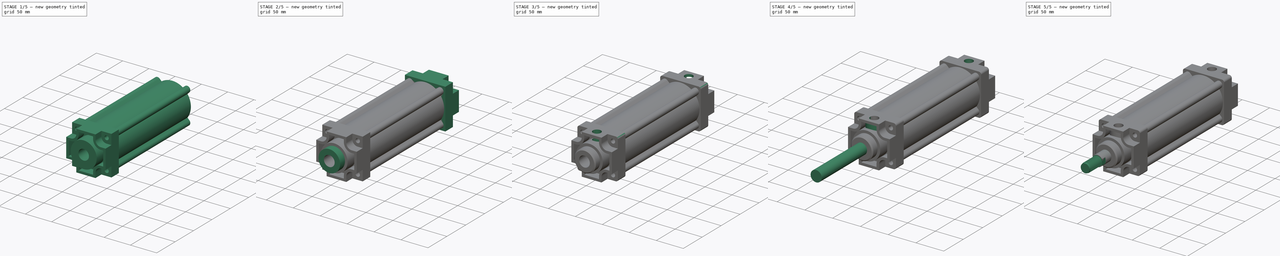
[diagram: build sequence overview — one tinted view per stage of 5, left to right]
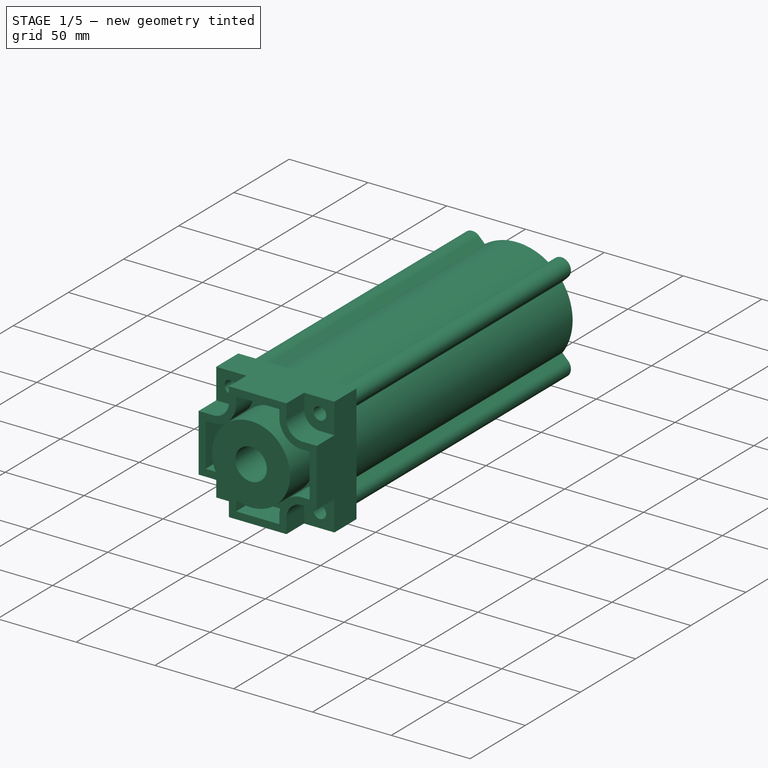
[diagram: stage 1 of 5 — iso view after this stage's code; geometry added in this stage tinted green]
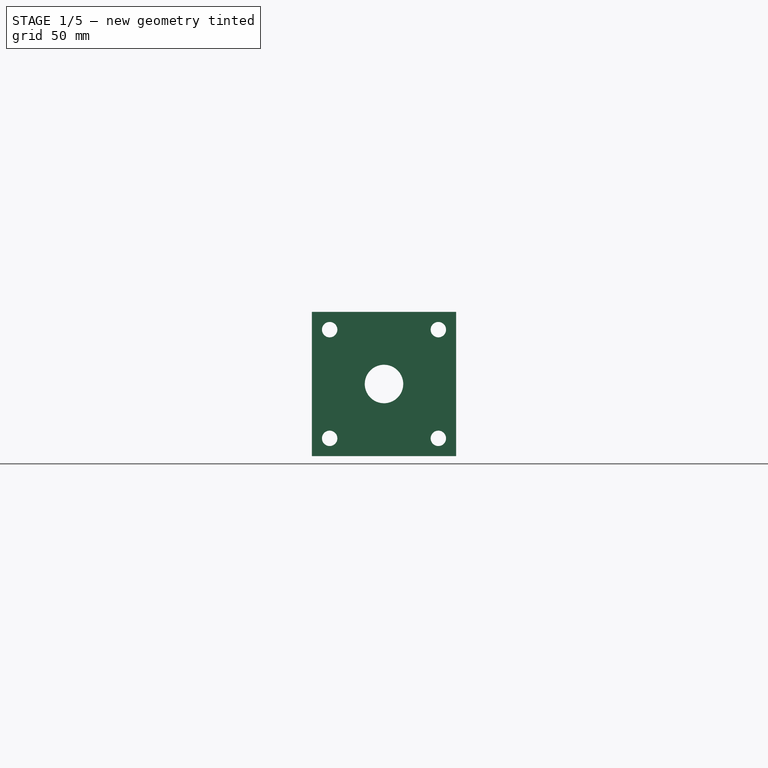
[diagram: stage 1 of 5 — front view after this stage's code; geometry added in this stage tinted green]
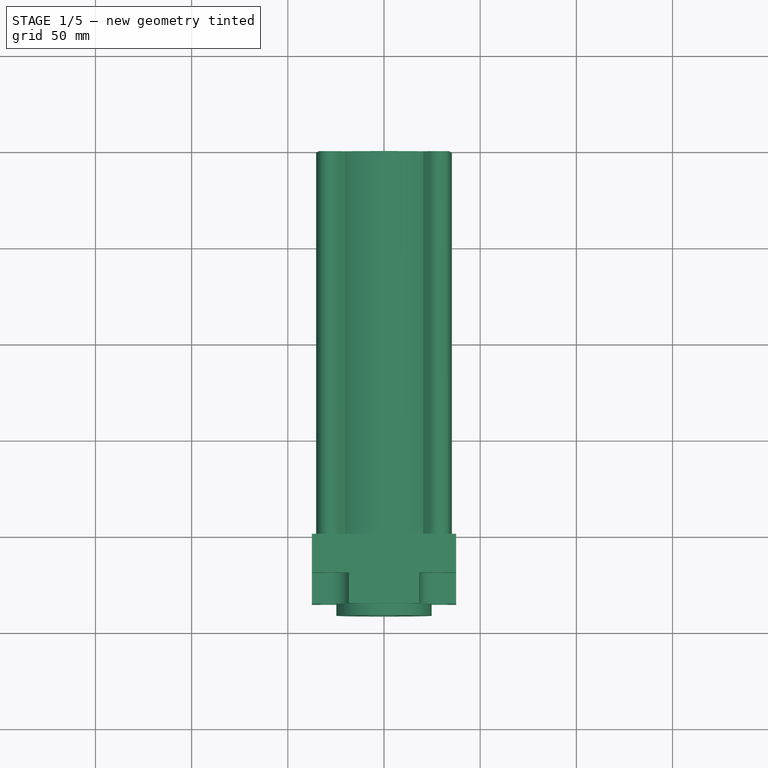
[diagram: stage 1 of 5 — top view after this stage's code; geometry added in this stage tinted green]
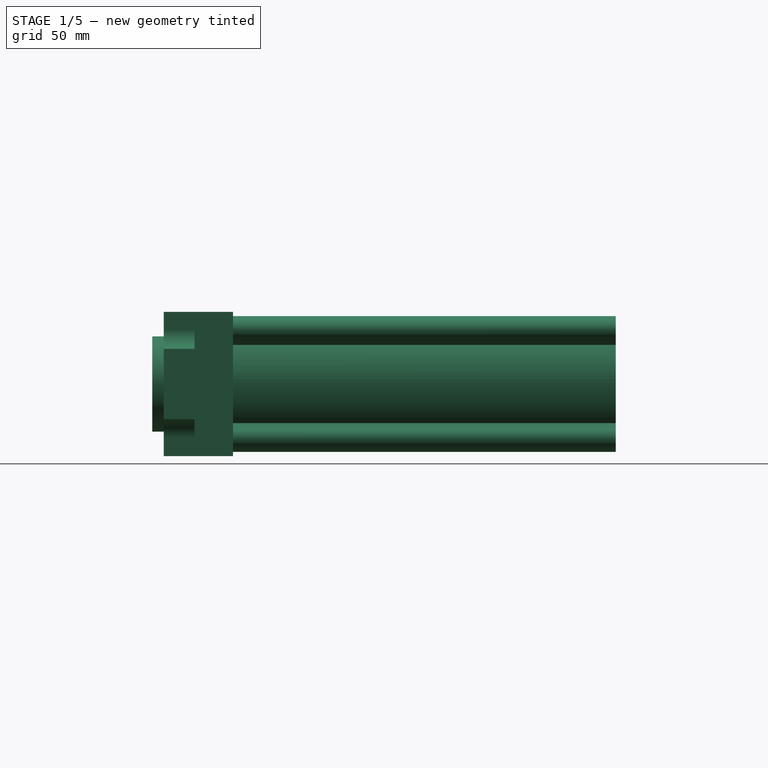
[diagram: stage 1 of 5 — right view after this stage's code; geometry added in this stage tinted green]
FCSTD DOCUMENT  (FreeCAD 0.18.4R)
Label: DA-63-XXX-TCA
License: CreativeCommons Attribution
LicenseURL: http://creativecommons.org/licenses/by/4.0/
objects: Sketcher::SketchObject×13, PartDesign::Pad×10, PartDesign::Body×3, PartDesign::Mirrored×2, PartDesign::Pocket×2, Spreadsheet::Sheet×1, Part::Helix×1, App::MeasureDistance×1, PartDesign::ShapeBinder×1, PartDesign::AdditivePipe×1, Part::Fuse×1, PartDesign::Fillet×1, PartDesign::Chamfer×1, App::Part×1
note: 49 computed .brp shape members not serialized (recipe doc carries the construction recipe); baked Part::Feature solids carry a one-line shape summary decoded from their .brp

FEATURE [Spreadsheet::Sheet] Spreadsheet  label="Medidas"
  cells = A1=Medidas Tabla; A2=CARRERRA001; B2(carrera)=150; C2=Delta Carrera; D2(delta)=5; A3=Ø; B3(diametro)=63; A4=AM; B4(am)=32; A5=B; B5(b)=45; A6=BG; B6(bg)=16; A7=EE; B7(ee)=75; A8=EEE; B8(eee)=15; C8=1/4 NPT; A9=GG; B9(gg)=36; A10=KK; B10(kk)=16; C10(kkp)=1.5; A11=KV; B11(kv)=24; A12=KW; B12(kw)=8; A13=L2; B13(l2)=26.5; A14=L8; B14(l8)=121; A15=MMM; B15(mmm)=20; A16=PL; B16(pl)=14; A17=RT; B17(rt)=8; A18=SW; B18(sw)=17; A19=TG; B19(tg)=56.5; A20=VA; B20(va)=4; A21=VD; B21(vd)=6; A22=VF; B22(vf)=16; A23=VG; B23(vg)=69; A24=WH; B24(wh)=37; A25=XD; B25(xd)=190; A26=AH; B26(ah)=50; A27=SA; B27(sa)=185; A28=XA; B28(xa)=190; A29=Peso Carrera 0; B29=1600; A30=(gr.) Cada 10mm; B30=60; A31=Peso Total; B31==B29 + B2 / 10 * B30
FEATURE [Sketcher::SketchObject] Sketch
  MapMode = 5
  Placement = pos=(0,0,0) rot=(1,0,0;1.5708rad)
  Support = -> [XZ_Plane001]
  expr: Constraints[76] = Medidas.rt / 2 * 1.5
  expr: Constraints[72] = Medidas.tg
  expr: Constraints[74] = Medidas.tg * 0.625
  expr: Constraints[75] = Medidas.b / 2
  expr: Constraints[73] = Medidas.rt / 2
  sketch-geometry (29):
    g0: LineSegment [constr] StartX=-28.25 StartY=28.25 StartZ=0 EndX=28.25 EndY=28.25 EndZ=0
    g1: LineSegment [constr] StartX=28.25 StartY=28.25 StartZ=0 EndX=28.25 EndY=-28.25 EndZ=0
    g2: LineSegment [constr] StartX=28.25 StartY=-28.25 StartZ=0 EndX=-28.25 EndY=-28.25 EndZ=0
    g3: LineSegment [constr] StartX=-28.25 StartY=-28.25 StartZ=0 EndX=-28.25 EndY=28.25 EndZ=0
    g4: LineSegment [constr] StartX=-28.25 StartY=28.25 StartZ=0 EndX=0 EndY=0 EndZ=0
    g5: LineSegment [constr] StartX=0 StartY=0 StartZ=0 EndX=28.25 EndY=-28.25 EndZ=0
    g6: LineSegment StartX=32.4926 StartY=24.0074 StartZ=0 EndX=28.8493 EndY=20.364 EndZ=0
    g7: LineSegment StartX=20.364 StartY=28.8493 StartZ=0 EndX=24.0074 EndY=32.4926 EndZ=0
    g8: LineSegment [constr] StartX=0 StartY=0 StartZ=0 EndX=35.3125 EndY=0 EndZ=0
    g9: ArcOfCircle CenterX=28.25 CenterY=28.25 CenterZ=0 NormalX=0 NormalY=0 NormalZ=1 AngleXU=0 Radius=6 StartAngle=5.49779 EndAngle=8.63938
    g10: ArcOfCircle CenterX=0 CenterY=0 CenterZ=0 NormalX=0 NormalY=0 NormalZ=1 AngleXU=0 Radius=35.3125 StartAngle=0.956138 EndAngle=2.18545
    g11: LineSegment StartX=32.4926 StartY=-24.0074 StartZ=0 EndX=28.8493 EndY=-20.364 EndZ=0
    g12: ArcOfCircle CenterX=28.25 CenterY=-28.25 CenterZ=0 NormalX=0 NormalY=0 NormalZ=1 AngleXU=0 Radius=6 StartAngle=3.92699 EndAngle=7.06858
    g13: LineSegment StartX=20.364 StartY=-28.8493 StartZ=0 EndX=24.0074 EndY=-32.4926 EndZ=0
    g14: LineSegment [constr] StartX=0 StartY=0 StartZ=0 EndX=0 EndY=35.3125 EndZ=0
    g15: LineSegment StartX=-32.4926 StartY=24.0074 StartZ=0 EndX=-28.8493 EndY=20.364 EndZ=0
    g16: ArcOfCircle CenterX=-28.25 CenterY=28.25 CenterZ=0 NormalX=0 NormalY=0 NormalZ=1 AngleXU=0 Radius=6 StartAngle=0.785398 EndAngle=3.92699
    g17: LineSegment StartX=-20.364 StartY=28.8493 StartZ=0 EndX=-24.0074 EndY=32.4926 EndZ=0
    g18: LineSegment StartX=-32.4926 StartY=-24.0074 StartZ=0 EndX=-28.8493 EndY=-20.364 EndZ=0
    g19: ArcOfCircle CenterX=-28.25 CenterY=-28.25 CenterZ=0 NormalX=0 NormalY=0 NormalZ=1 AngleXU=0 Radius=6 StartAngle=2.35619 EndAngle=5.49779
    g20: LineSegment StartX=-20.364 StartY=-28.8493 StartZ=0 EndX=-24.0074 EndY=-32.4926 EndZ=0
    g21: ArcOfCircle CenterX=0 CenterY=0 CenterZ=0 NormalX=0 NormalY=0 NormalZ=1 AngleXU=0 Radius=35.3125 StartAngle=2.52693 EndAngle=3.75625
    g22: ArcOfCircle CenterX=0 CenterY=0 CenterZ=0 NormalX=0 NormalY=0 NormalZ=1 AngleXU=0 Radius=35.3125 StartAngle=4.09773 EndAngle=5.32705
    g23: ArcOfCircle CenterX=0 CenterY=0 CenterZ=0 NormalX=0 NormalY=0 NormalZ=1 AngleXU=0 Radius=35.3125 StartAngle=5.66853 EndAngle=6.89784
    g24: Circle CenterX=0 CenterY=0 CenterZ=0 NormalX=0 NormalY=0 NormalZ=1 AngleXU=0 Radius=22.5
    g25: Circle CenterX=28.25 CenterY=28.25 CenterZ=0 NormalX=0 NormalY=0 NormalZ=1 AngleXU=0 Radius=4
    g26: Circle CenterX=-28.25 CenterY=28.25 CenterZ=0 NormalX=0 NormalY=0 NormalZ=1 AngleXU=0 Radius=4
    g27: Circle CenterX=-28.25 CenterY=-28.25 CenterZ=0 NormalX=0 NormalY=0 NormalZ=1 AngleXU=0 Radius=4
    g28: Circle CenterX=28.25 CenterY=-28.25 CenterZ=0 NormalX=0 NormalY=0 NormalZ=1 AngleXU=0 Radius=4
  constraints (78):
    c: Coincident(g0,g1)
    c: Coincident(g1,g2)
    c: Coincident(g2,g3)
    c: Coincident(g3,g0)
    c: Horizontal(g0)
    c: Horizontal(g2)
    c: Vertical(g1)
    c: Vertical(g3)
    c: Coincident(g0,g4)
    c: Coincident(g4,g-1)
    c: Coincident(g4,g5)
    c: Coincident(g5,g1)
    c: Equal(g5,g4)
    c: Parallel(g5,g4)
    c: Equal(g3,g0)
    c: Parallel(g6,g7)
    c: Coincident(g-1,g8)
    c: Horizontal(g8)
    c: Angle(g8,g6) = 0.785398
    c: Coincident(g9,g0)
    c: Coincident(g9,g6)
    c: Coincident(g10,g-1)
    c: Parallel(g11,g13)
    c: Tangent(g12,g13) = -1.5708
    c: Tangent(g12,g11) = -1.5708
    c: PointOnObject(g11,g10)
    c: PointOnObject(g13,g10)
    c: Perpendicular(g6,g11)
    c: Coincident(g12,g1)
    c: Equal(g11,g6)
    c: Tangent(g9,g7) = 1.5708
    c: Equal(g9,g12)
    c: Coincident(g-1,g14)
    c: Vertical(g14)
    c: PointOnObject(g14,g10)
    c: Parallel(g15,g17)
    c: Parallel(g18,g20)
    c: Tangent(g19,g20) = 1.5708
    c: Tangent(g19,g18) = 1.5708
    c: Perpendicular(g15,g18)
    c: Equal(g18,g15)
    c: Tangent(g16,g17) = -1.5708
    c: Equal(g16,g19)
    c: Perpendicular(g7,g17)
    c: Equal(g12,g19)
    c: Coincident(g19,g2)
    c: Coincident(g0,g16)
    c: PointOnObject(g20,g10)
    c: Tangent(g16,g15) = -1.5708
    c: PointOnObject(g15,g10)
    c: Coincident(g10,g7)
    c: Coincident(g23,g6)
    c: Equal(g10,g21)
    c: Coincident(g10,g17)
    c: Coincident(g10,g21)
    c: Equal(g21,g22)
    c: PointOnObject(g21,g18)
    c: PointOnObject(g22,g20)
    c: Coincident(g21,g22)
    c: Equal(g22,g23)
    c: PointOnObject(g23,g11)
    c: Coincident(g22,g23)
    c: PointOnObject(g22,g13)
    c: PointOnObject(g21,g15)
    c: Coincident(g24,g-1)
    c: Coincident(g25,g0)
    c: Coincident(g26,g0)
    c: Coincident(g27,g2)
    c: Coincident(g28,g1)
    c: Equal(g28,g25)
    c: Equal(g25,g26)
    c: Equal(g26,g27)
    c: DistanceX(g0,g0) = 56.5
    c: Radius(g28) = 4
    c: Radius(g23) = 35.3125
    c: Radius(g24) = 22.5
    c: Radius(g12) = 6
    c: PointOnObject(g8,g23)
FEATURE [PartDesign::Pad] Pad
  Length = 199
  Length2 = 100
  Midplane = true
  Placement = pos=(0,0,0) rot=(1,0,0;1.5708rad)
  Profile = -> Sketch
  Refine = true
  Type = 0
  expr: Length = Medidas.l8 + Medidas.carrera - 2 * Medidas.gg
FEATURE [Sketcher::SketchObject] Sketch001
  ExternalGeometry = -> [Pad]
  MapMode = 5
  Placement = pos=(0,-99.5,-1.02981e-11) rot=(1,0,0;1.5708rad)
  Support = -> [Pad]
  expr: Constraints[37] = Medidas.mmm / 2
  expr: Constraints[15] = Medidas.ee
  expr: Constraints[33] = Medidas.tg
  expr: Constraints[32] = Medidas.rt / 2
  sketch-geometry (15):
    g0: LineSegment StartX=-37.5 StartY=37.5 StartZ=0 EndX=37.5 EndY=37.5 EndZ=0
    g1: LineSegment StartX=37.5 StartY=37.5 StartZ=0 EndX=37.5 EndY=-37.5 EndZ=0
    g2: LineSegment StartX=37.5 StartY=-37.5 StartZ=0 EndX=-37.5 EndY=-37.5 EndZ=0
    g3: LineSegment StartX=-37.5 StartY=-37.5 StartZ=0 EndX=-37.5 EndY=37.5 EndZ=0
    g4: LineSegment [constr] StartX=-37.5 StartY=37.5 StartZ=0 EndX=0 EndY=0 EndZ=0
    g5: LineSegment [constr] StartX=0 StartY=0 StartZ=0 EndX=37.5 EndY=-37.5 EndZ=0
    g6: Circle CenterX=-28.25 CenterY=28.25 CenterZ=0 NormalX=0 NormalY=0 NormalZ=1 AngleXU=0 Radius=4
    g7: Circle CenterX=28.25 CenterY=28.25 CenterZ=0 NormalX=0 NormalY=0 NormalZ=1 AngleXU=0 Radius=4
    g8: Circle CenterX=28.25 CenterY=-28.25 CenterZ=0 NormalX=0 NormalY=0 NormalZ=1 AngleXU=0 Radius=4
    g9: Circle CenterX=-28.25 CenterY=-28.25 CenterZ=0 NormalX=0 NormalY=0 NormalZ=1 AngleXU=0 Radius=4
    g10: LineSegment [constr] StartX=-28.25 StartY=28.25 StartZ=0 EndX=28.25 EndY=28.25 EndZ=0
    g11: LineSegment [constr] StartX=28.25 StartY=28.25 StartZ=0 EndX=28.25 EndY=-28.25 EndZ=0
    g12: LineSegment [constr] StartX=28.25 StartY=-28.25 StartZ=0 EndX=-28.25 EndY=-28.25 EndZ=0
    g13: LineSegment [constr] StartX=-28.25 StartY=-28.25 StartZ=0 EndX=-28.25 EndY=28.25 EndZ=0
    g14: Circle CenterX=0 CenterY=0 CenterZ=0 NormalX=0 NormalY=0 NormalZ=1 AngleXU=0 Radius=10
  constraints (38):
    c: Coincident(g0,g1)
    c: Coincident(g1,g2)
    c: Coincident(g2,g3)
    c: Coincident(g3,g0)
    c: Horizontal(g0)
    c: Horizontal(g2)
    c: Vertical(g1)
    c: Vertical(g3)
    c: Coincident(g0,g4)
    c: Coincident(g4,g-1)
    c: Coincident(g4,g5)
    c: Coincident(g5,g1)
    c: Parallel(g5,g4)
    c: Equal(g5,g4)
    c: Equal(g0,g3)
    c: DistanceX(g2,g2) = 75
    c: PointOnObject(g6,g4)
    c: Coincident(g10,g11)
    c: Coincident(g11,g12)
    c: Coincident(g12,g13)
    c: Coincident(g13,g10)
    c: Horizontal(g10)
    c: Horizontal(g12)
    c: Vertical(g11)
    c: Vertical(g13)
    c: Coincident(g10,g6)
    c: Coincident(g11,g8)
    c: Coincident(g7,g10)
    c: Coincident(g12,g9)
    c: Equal(g9,g8)
    c: Equal(g8,g7)
    c: Equal(g7,g6)
    c: Radius(g6) = 4
    c: DistanceX(g10,g10) = 56.5
    c: Equal(g13,g10)
    c: Symmetric(g7,g6,g-2)
    c: Coincident(g14,g-1)
    c: Radius(g14) = 10
FEATURE [PartDesign::Pad] Pad001
  BaseFeature = -> Pad
  Length = 20
  Length2 = 100
  Placement = pos=(0,0,0) rot=(1,0,0;1.5708rad)
  Profile = -> Sketch001
  Refine = true
  Type = 0
  expr: Length = Medidas.gg - Medidas.bg
FEATURE [Sketcher::SketchObject] Sketch002
  ExternalGeometry = -> [Pad001]
  MapMode = 5
  Placement = pos=(0,-119.5,-1.23669e-11) rot=(1,0,0;1.5708rad)
  Support = -> [Pad001]
  expr: Constraints[114] = Medidas.rt * 1.25 + 4.5
  expr: Constraints[45] = Medidas.tg - 2.5 * Medidas.rt
  expr: Constraints[48] = Medidas.rt * 1.25
  sketch-geometry (37):
    g0: LineSegment StartX=-37.5 StartY=18.25 StartZ=0 EndX=-37.5 EndY=-18.25 EndZ=0
    g1: LineSegment StartX=-37.5 StartY=-18.25 StartZ=0 EndX=-28.25 EndY=-18.25 EndZ=0
    g2: LineSegment StartX=-18.25 StartY=-28.25 StartZ=0 EndX=-18.25 EndY=-37.5 EndZ=0
    g3: LineSegment StartX=-18.25 StartY=-37.5 StartZ=0 EndX=18.25 EndY=-37.5 EndZ=0
    g4: LineSegment StartX=18.25 StartY=-37.5 StartZ=0 EndX=18.25 EndY=-28.25 EndZ=0
    g5: LineSegment StartX=28.25 StartY=-18.25 StartZ=0 EndX=37.5 EndY=-18.25 EndZ=0
    g6: LineSegment StartX=37.5 StartY=-18.25 StartZ=0 EndX=37.5 EndY=18.25 EndZ=0
    g7: LineSegment StartX=37.5 StartY=18.25 StartZ=0 EndX=28.25 EndY=18.25 EndZ=0
    g8: LineSegment StartX=18.25 StartY=28.25 StartZ=0 EndX=18.25 EndY=37.5 EndZ=0
    g9: LineSegment StartX=18.25 StartY=37.5 StartZ=0 EndX=-18.25 EndY=37.5 EndZ=0
    g10: LineSegment StartX=-18.25 StartY=37.5 StartZ=0 EndX=-18.25 EndY=28.25 EndZ=0
    g11: LineSegment StartX=-28.25 StartY=18.25 StartZ=0 EndX=-37.5 EndY=18.25 EndZ=0
    g12: ArcOfCircle CenterX=-28.25 CenterY=28.25 CenterZ=0 NormalX=0 NormalY=0 NormalZ=1 AngleXU=0 Radius=10 StartAngle=4.71239 EndAngle=6.28319
    g13: ArcOfCircle CenterX=-28.25 CenterY=-28.25 CenterZ=0 NormalX=0 NormalY=0 NormalZ=1 AngleXU=0 Radius=10 StartAngle=0 EndAngle=1.5708
    g14: ArcOfCircle CenterX=28.25 CenterY=-28.25 CenterZ=0 NormalX=0 NormalY=0 NormalZ=1 AngleXU=0 Radius=10 StartAngle=1.5708 EndAngle=3.14159
    g15: ArcOfCircle CenterX=28.25 CenterY=28.25 CenterZ=0 NormalX=0 NormalY=0 NormalZ=1 AngleXU=0 Radius=10 StartAngle=3.14159 EndAngle=4.71239
    g16: LineSegment StartX=-13.75 StartY=33 StartZ=0 EndX=-13.75 EndY=28.25 EndZ=0
    g17: LineSegment StartX=-28.25 StartY=13.75 StartZ=0 EndX=-33 EndY=13.75 EndZ=0
    g18: LineSegment StartX=-33 StartY=13.75 StartZ=0 EndX=-33 EndY=-13.75 EndZ=0
    g19: LineSegment StartX=-33 StartY=-13.75 StartZ=0 EndX=-28.25 EndY=-13.75 EndZ=0
    g20: LineSegment StartX=-13.75 StartY=-28.25 StartZ=0 EndX=-13.75 EndY=-33 EndZ=0
    g21: LineSegment StartX=-13.75 StartY=-33 StartZ=0 EndX=13.75 EndY=-33 EndZ=0
    g22: LineSegment StartX=13.75 StartY=-33 StartZ=0 EndX=13.75 EndY=-28.25 EndZ=0
    g23: LineSegment StartX=28.25 StartY=-13.75 StartZ=0 EndX=33 EndY=-13.75 EndZ=0
    g24: LineSegment StartX=33 StartY=-13.75 StartZ=0 EndX=33 EndY=13.75 EndZ=0
    g25: LineSegment StartX=33 StartY=13.75 StartZ=0 EndX=28.25 EndY=13.75 EndZ=0
    g26: LineSegment StartX=13.75 StartY=28.25 StartZ=0 EndX=13.75 EndY=33 EndZ=0
    g27: LineSegment StartX=13.75 StartY=33 StartZ=0 EndX=-13.75 EndY=33 EndZ=0
    g28: LineSegment [constr] StartX=-33 StartY=-13.75 StartZ=0 EndX=-37.5 EndY=-13.75 EndZ=0
    g29: LineSegment [constr] StartX=33 StartY=-13.75 StartZ=0 EndX=37.5 EndY=-13.75 EndZ=0
    g30: LineSegment [constr] StartX=-13.75 StartY=33 StartZ=0 EndX=-13.75 EndY=37.5 EndZ=0
    g31: LineSegment [constr] StartX=-13.75 StartY=-33 StartZ=0 EndX=-13.75 EndY=-37.5 EndZ=0
    g32: LineSegment [constr] StartX=-33 StartY=-13.75 StartZ=0 EndX=-33 EndY=-18.25 EndZ=0
    g33: ArcOfCircle CenterX=-28.25 CenterY=28.25 CenterZ=0 NormalX=0 NormalY=0 NormalZ=1 AngleXU=0 Radius=14.5 StartAngle=4.71239 EndAngle=6.28319
    g34: ArcOfCircle CenterX=28.25 CenterY=28.25 CenterZ=0 NormalX=0 NormalY=0 NormalZ=1 AngleXU=0 Radius=14.5 StartAngle=3.14159 EndAngle=4.71239
    g35: ArcOfCircle CenterX=28.25 CenterY=-28.25 CenterZ=0 NormalX=0 NormalY=0 NormalZ=1 AngleXU=0 Radius=14.5 StartAngle=1.5708 EndAngle=3.14159
    g36: ArcOfCircle CenterX=-28.25 CenterY=-28.25 CenterZ=0 NormalX=0 NormalY=0 NormalZ=1 AngleXU=0 Radius=14.5 StartAngle=0 EndAngle=1.5708
  constraints (115):
    c: Coincident(g1,g0)
    c: Horizontal(g1)
    c: Vertical(g2)
    c: Coincident(g2,g3)
    c: Coincident(g3,g4)
    c: Vertical(g4)
    c: Horizontal(g5)
    c: Coincident(g5,g6)
    c: Coincident(g6,g7)
    c: Vertical(g8)
    c: Coincident(g8,g9)
    c: Horizontal(g9)
    c: Coincident(g9,g10)
    c: Coincident(g11,g0)
    c: Horizontal(g11)
    c: PointOnObject(g0,g-3)
    c: Symmetric(g0,g0,g-1)
    c: Symmetric(g6,g5,g-1)
    c: Symmetric(g8,g9,g-2)
    c: PointOnObject(g9,g-4)
    c: Vertical(g10)
    c: Horizontal(g7)
    c: Symmetric(g3,g2,g-2)
    c: PointOnObject(g3,g-6)
    c: Equal(g10,g8)
    c: Equal(g8,g7)
    c: Equal(g7,g5)
    c: Equal(g5,g4)
    c: Equal(g4,g2)
    c: Equal(g2,g1)
    c: Equal(g1,g11)
    c: Equal(g3,g0)
    c: Equal(g0,g9)
    c: Equal(g9,g6)
    c: Coincident(g12,g10)
    c: Coincident(g12,g11)
    c: Coincident(g13,g1)
    c: Coincident(g13,g2)
    c: Coincident(g14,g4)
    c: Coincident(g14,g5)
    c: Coincident(g15,g7)
    c: Coincident(g15,g8)
    c: Equal(g15,g12)
    c: Equal(g12,g13)
    c: Equal(g13,g14)
    c: DistanceX(g3,g3) = 36.5
    c: Vertical(g1,g13)
    c: PointOnObject(g6,g-5)
    c: Radius(g13) = 10
    c: Vertical(g16)
    c: Coincident(g17,g18)
    c: Vertical(g18)
    c: Coincident(g18,g19)
    c: Horizontal(g19)
    c: Vertical(g20)
    c: Coincident(g20,g21)
    c: Horizontal(g21)
    c: Coincident(g21,g22)
    c: Vertical(g22)
    c: Horizontal(g23)
    c: Coincident(g23,g24)
    c: Vertical(g24)
    c: Coincident(g24,g25)
    c: Horizontal(g25)
    c: Vertical(g26)
    c: Coincident(g26,g27)
    c: Coincident(g27,g16)
    c: Horizontal(g27)
    c: Symmetric(g26,g16,g-2)
    c: Symmetric(g17,g18,g-1)
    c: Symmetric(g20,g21,g-2)
    c: Symmetric(g23,g24,g-1)
    c: Equal(g24,g27)
    c: Equal(g27,g18)
    c: Equal(g18,g21)
    c: Equal(g20,g22)
    c: Equal(g22,g23)
    c: Equal(g23,g25)
    c: Equal(g25,g26)
    c: Equal(g26,g16)
    c: Equal(g16,g17)
    c: Equal(g17,g19)
    c: Horizontal(g17)
    c: Coincident(g18,g28)
    c: PointOnObject(g28,g0)
    c: Horizontal(g28)
    c: Coincident(g23,g29)
    c: PointOnObject(g29,g6)
    c: Horizontal(g29)
    c: Coincident(g16,g30)
    c: PointOnObject(g30,g9)
    c: Vertical(g30)
    c: Coincident(g20,g31)
    c: Vertical(g31)
    c: Equal(g29,g31)
    c: Equal(g31,g28)
    c: Equal(g28,g30)
    c: DistanceX(g28,g28) = 4.5
    c: Vertical(g32)
    c: PointOnObject(g32,g1)
    c: Coincident(g18,g32)
    c: Equal(g32,g28)
    c: PointOnObject(g31,g3)
    c: Coincident(g33,g16)
    c: Coincident(g33,g17)
    c: Coincident(g34,g25)
    c: Coincident(g34,g26)
    c: Coincident(g35,g22)
    c: Coincident(g35,g23)
    c: Tangent(g36,g19) = 1.5708
    c: Tangent(g36,g20) = 1.5708
    c: Vertical(g35,g23)
    c: Equal(g33,g34)
    c: Equal(g34,g35)
    c: Radius(g35) = 14.5
FEATURE [PartDesign::Pad] Pad002
  BaseFeature = -> Pad001
  Length = 16
  Length2 = 100
  Placement = pos=(0,0,0) rot=(1,0,0;1.5708rad)
  Profile = -> Sketch002
  Refine = true
  Type = 0
  expr: Length = Medidas.bg
FEATURE [Sketcher::SketchObject] Sketch003
  MapMode = 5
  Placement = pos=(0,-119.5,-1.23669e-11) rot=(1,0,0;1.5708rad)
  Support = -> [Pad002]
  expr: Constraints[3] = Medidas.b / 2 * 1.1
  expr: Constraints[2] = Medidas.mmm / 2
  sketch-geometry (2):
    g0: Circle CenterX=0 CenterY=0 CenterZ=0 NormalX=0 NormalY=0 NormalZ=1 AngleXU=0 Radius=10
    g1: Circle CenterX=0 CenterY=0 CenterZ=0 NormalX=0 NormalY=0 NormalZ=1 AngleXU=0 Radius=24.75
  constraints (4):
    c: Coincident(g0,g-1)
    c: Coincident(g1,g-1)
    c: Radius(g0) = 10
    c: Radius(g1) = 24.75
FEATURE [PartDesign::Pad] Pad003
  BaseFeature = -> Pad002
  Length = 22
  Length2 = 100
  Placement = pos=(0,0,0) rot=(1,0,0;1.5708rad)
  Profile = -> Sketch003
  Refine = true
  Type = 0
  expr: Length = Medidas.bg + Medidas.vd
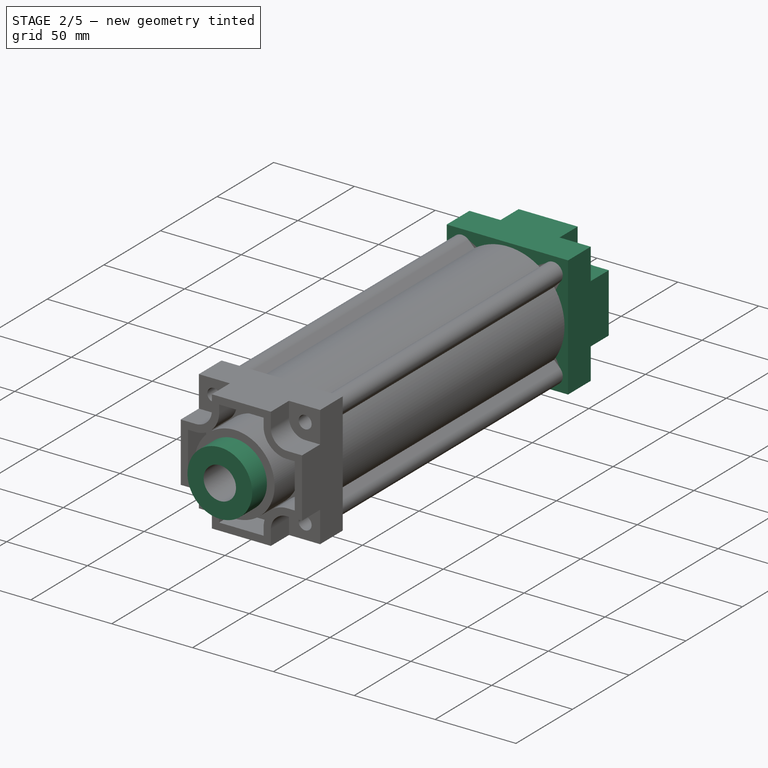
[diagram: stage 2 of 5 — iso view after this stage's code; geometry added in this stage tinted green]
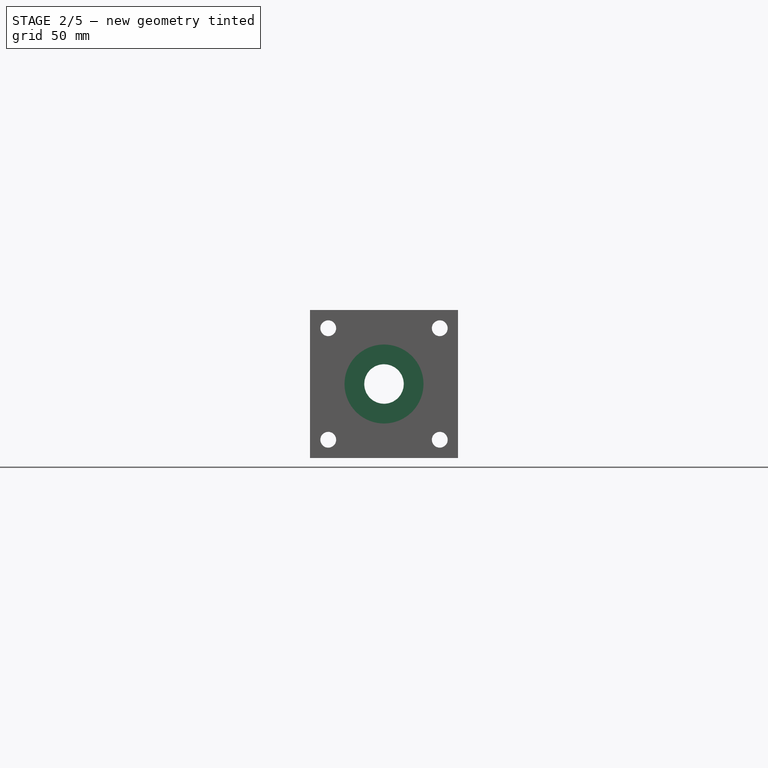
[diagram: stage 2 of 5 — front view after this stage's code; geometry added in this stage tinted green]
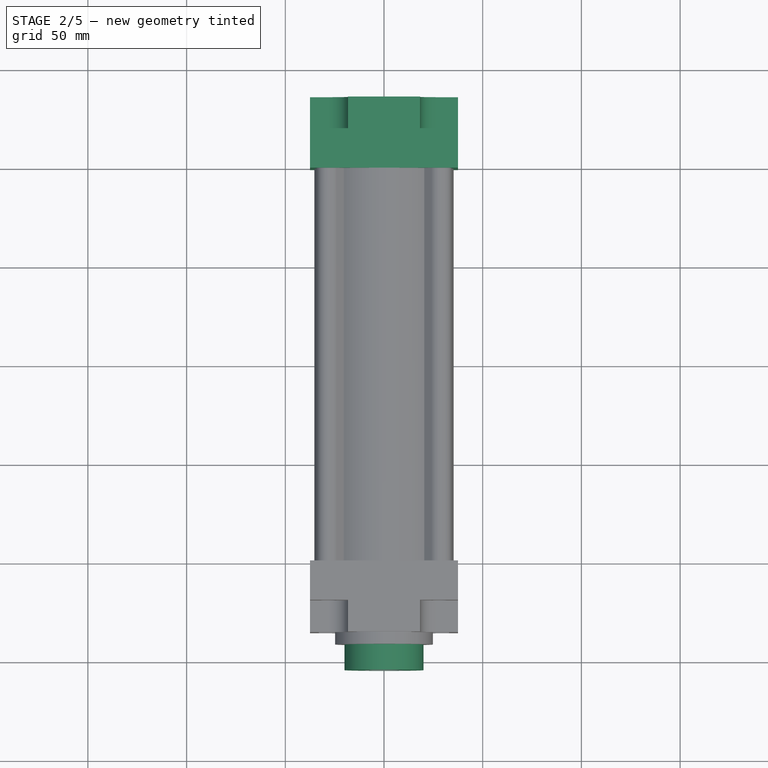
[diagram: stage 2 of 5 — top view after this stage's code; geometry added in this stage tinted green]
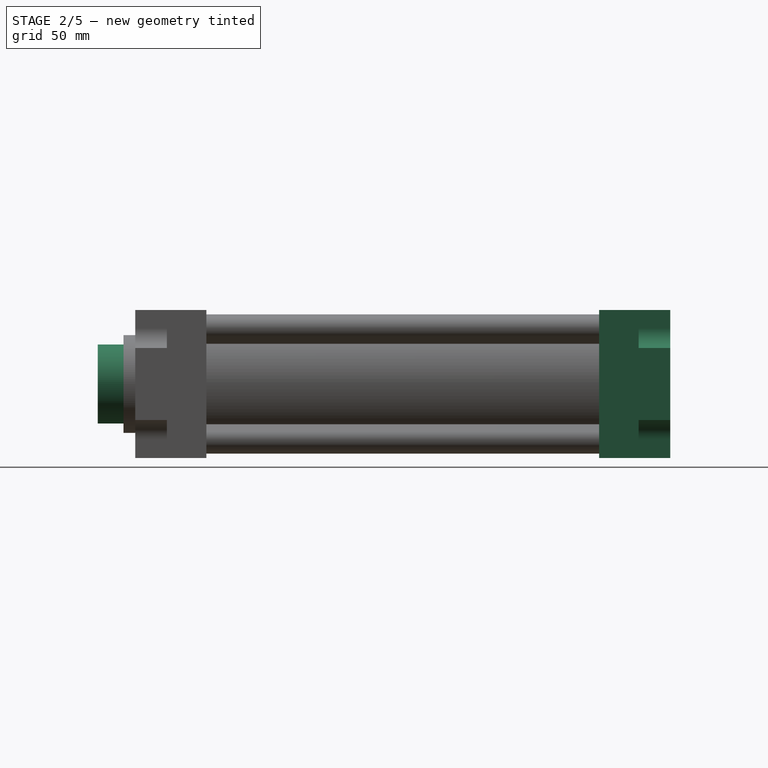
[diagram: stage 2 of 5 — right view after this stage's code; geometry added in this stage tinted green]
FEATURE [Sketcher::SketchObject] Sketch004
  MapMode = 5
  Placement = pos=(0,-134,-1.3893e-11) rot=(1,0,0;1.5708rad)
  Support = -> [Pad003]
  expr: Constraints[3] = Medidas.mmm / 2
  expr: Constraints[2] = Medidas.b / 2
  sketch-geometry (2):
    g0: Circle CenterX=0 CenterY=0 CenterZ=0 NormalX=0 NormalY=0 NormalZ=1 AngleXU=0 Radius=20
    g1: Circle CenterX=0 CenterY=0 CenterZ=0 NormalX=0 NormalY=0 NormalZ=1 AngleXU=0 Radius=10
  constraints (4):
    c: Coincident(g0,g-1)
    c: Coincident(g1,g-1)
    c: Radius(g0) = 22.5
    c: Radius(g1) = 10
FEATURE [PartDesign::Pad] Pad004
  BaseFeature = -> Pad003
  Length = 20.5
  Length2 = 100
  Placement = pos=(0,0,0) rot=(1,0,0;1.5708rad)
  Profile = -> Sketch004
  Refine = true
  Type = 0
  expr: Length = Medidas.l2 - Medidas.vd
FEATURE [PartDesign::Mirrored] Mirrored
  BaseFeature = -> Pad004
  MirrorPlane = -> XZ_Plane001
  Originals = -> [Pad001]
  Placement = pos=(0,0,0) rot=(1,0,0;1.5708rad)
  Refine = true
FEATURE [PartDesign::Mirrored] Mirrored001
  BaseFeature = -> Mirrored
  MirrorPlane = -> XZ_Plane001
  Originals = -> [Pad002]
  Placement = pos=(0,0,0) rot=(1,0,0;1.5708rad)
  Refine = true
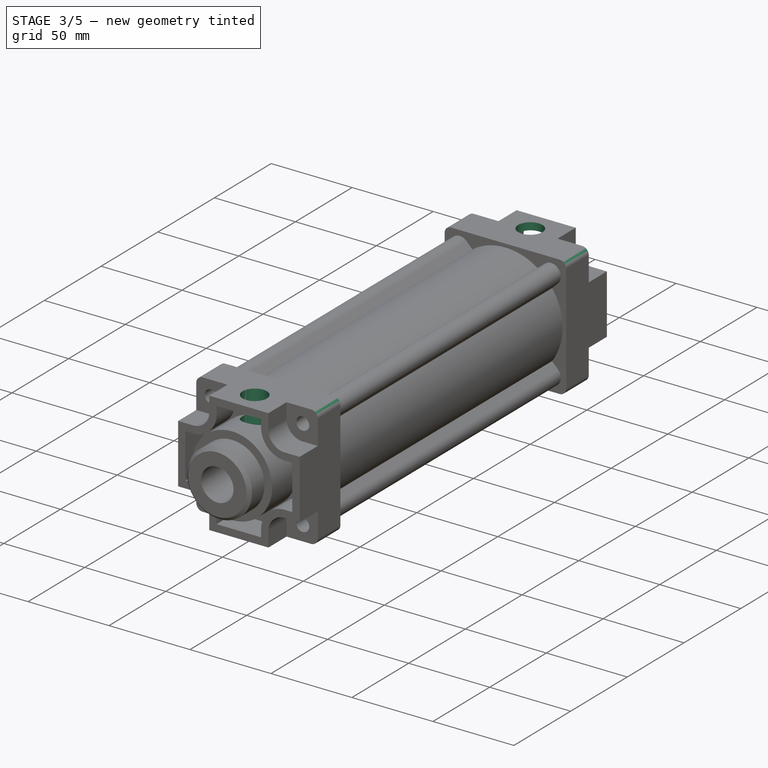
[diagram: stage 3 of 5 — iso view after this stage's code; geometry added in this stage tinted green]
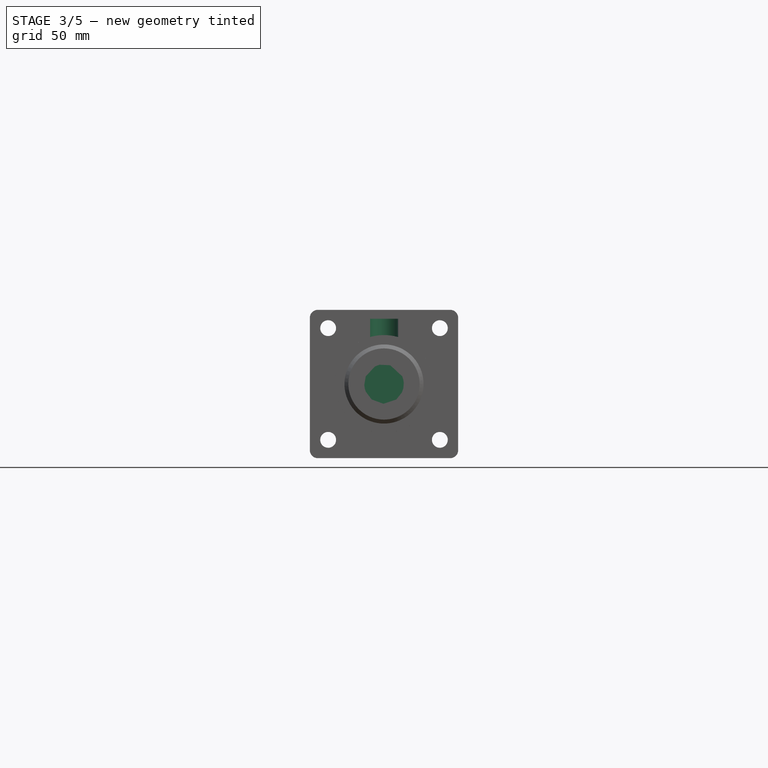
[diagram: stage 3 of 5 — front view after this stage's code; geometry added in this stage tinted green]
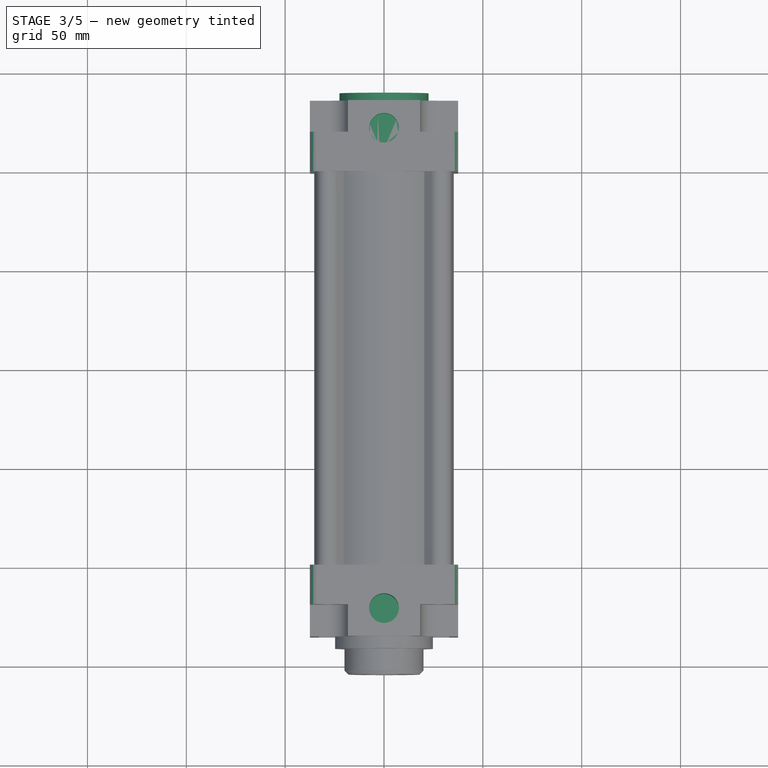
[diagram: stage 3 of 5 — top view after this stage's code; geometry added in this stage tinted green]
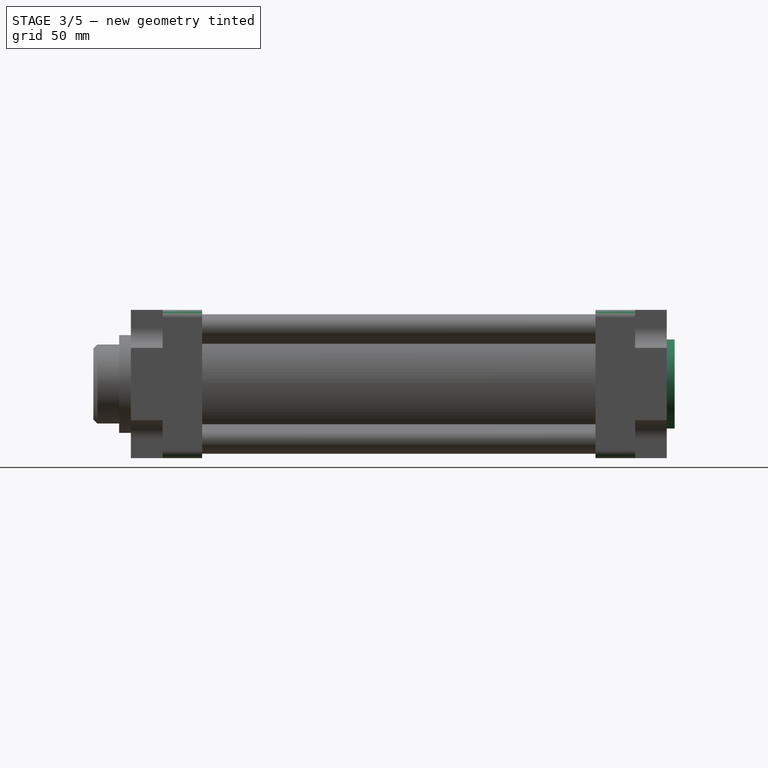
[diagram: stage 3 of 5 — right view after this stage's code; geometry added in this stage tinted green]
FEATURE [Sketcher::SketchObject] Sketch013
  MapMode = 5
  Placement = pos=(0,119.5,1.23705e-11) rot=(-1,0,0;1.5708rad)
  Support = -> [Mirrored001]
  expr: Constraints[1] = Medidas.b / 2
  sketch-geometry (1):
    g0: Circle CenterX=0 CenterY=0 CenterZ=0 NormalX=0 NormalY=0 NormalZ=1 AngleXU=0 Radius=22.5
  constraints (2):
    c: Coincident(g0,g-1)
    c: Radius(g0) = 22.5
FEATURE [PartDesign::Pad] Pad010
  BaseFeature = -> Mirrored001
  Length = 20
  Length2 = 100
  Placement = pos=(0,0,0) rot=(1,0,0;1.5708rad)
  Profile = -> Sketch013
  Refine = true
  Type = 0
  expr: Length = Medidas.bg + Medidas.va
FEATURE [PartDesign::Fillet] Fillet
  Base = -> Pad010 [Edge28,Edge39,Edge21,Edge27,Edge174,Edge173,Edge180,Edge186]
  BaseFeature = -> Pad010
  Placement = pos=(0,0,0) rot=(1,0,0;1.5708rad)
  Radius = 4
  expr: Radius = Medidas.rt / 2
FEATURE [PartDesign::Chamfer] Chamfer
  Base = -> Fillet [Edge307]
  BaseFeature = -> Fillet
  Placement = pos=(0,0,0) rot=(1,0,0;1.5708rad)
  Size = 2
  expr: Size = Medidas.va / 2
FEATURE [Sketcher::SketchObject] Sketch014
  MapMode = 5
  Placement = pos=(0,-3.8703e-12,37.5) rot=(0,0,1;3.14159rad)
  Support = -> [Chamfer]
  expr: Constraints[5] = Medidas.l8 + Medidas.carrera - 2 * Medidas.pl
  expr: Constraints[3] = Medidas.eee / 2
  sketch-geometry (2):
    g0: Circle CenterX=0 CenterY=121.5 CenterZ=0 NormalX=0 NormalY=0 NormalZ=1 AngleXU=0 Radius=7.5
    g1: Circle CenterX=0 CenterY=-121.5 CenterZ=0 NormalX=0 NormalY=0 NormalZ=1 AngleXU=0 Radius=7.5
  constraints (6):
    c: PointOnObject(g0,g-2)
    c: PointOnObject(g1,g-2)
    c: Equal(g1,g0)
    c: Radius(g0) = 7.5
    c: Symmetric(g0,g1,g-1)
    c: DistanceY(g1,g0) = 243
FEATURE [PartDesign::Pocket] Pocket
  BaseFeature = -> Chamfer
  Length = 22.5
  Length2 = 100
  Placement = pos=(0,0,0) rot=(1,0,0;1.5708rad)
  Profile = -> Sketch014
  Refine = true
  Type = 0
  expr: Length = Medidas.b / 2
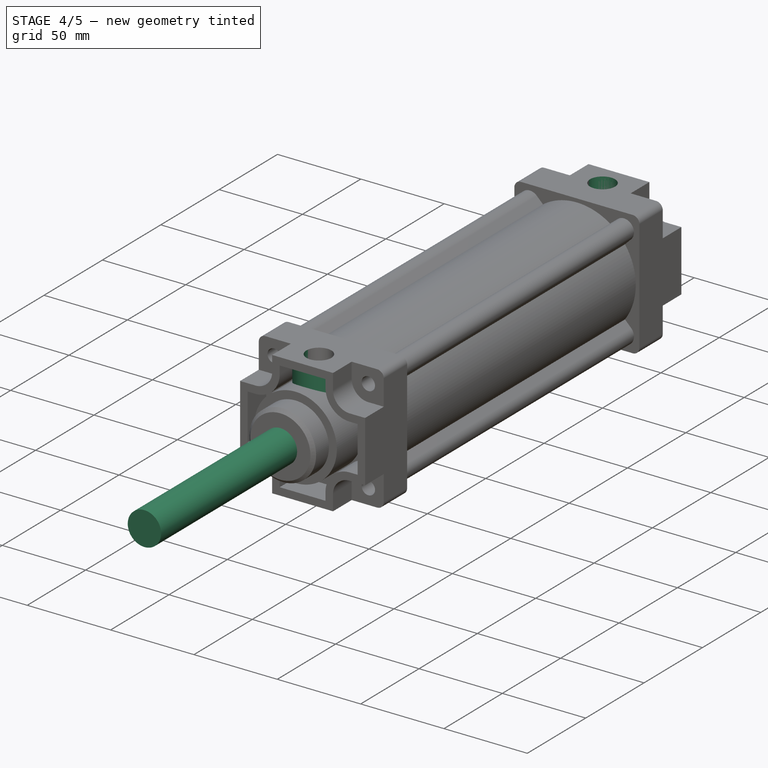
[diagram: stage 4 of 5 — iso view after this stage's code; geometry added in this stage tinted green]
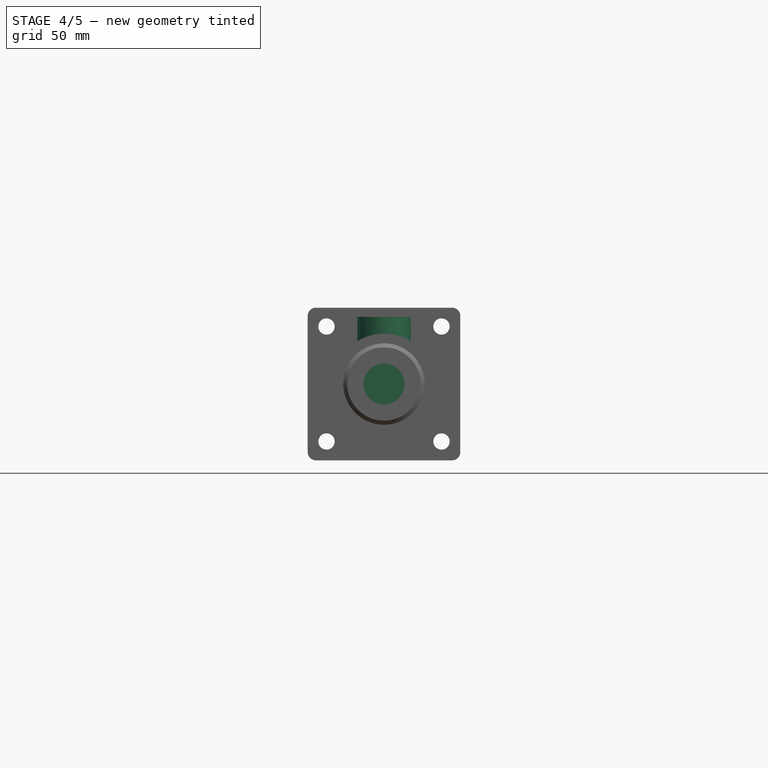
[diagram: stage 4 of 5 — front view after this stage's code; geometry added in this stage tinted green]
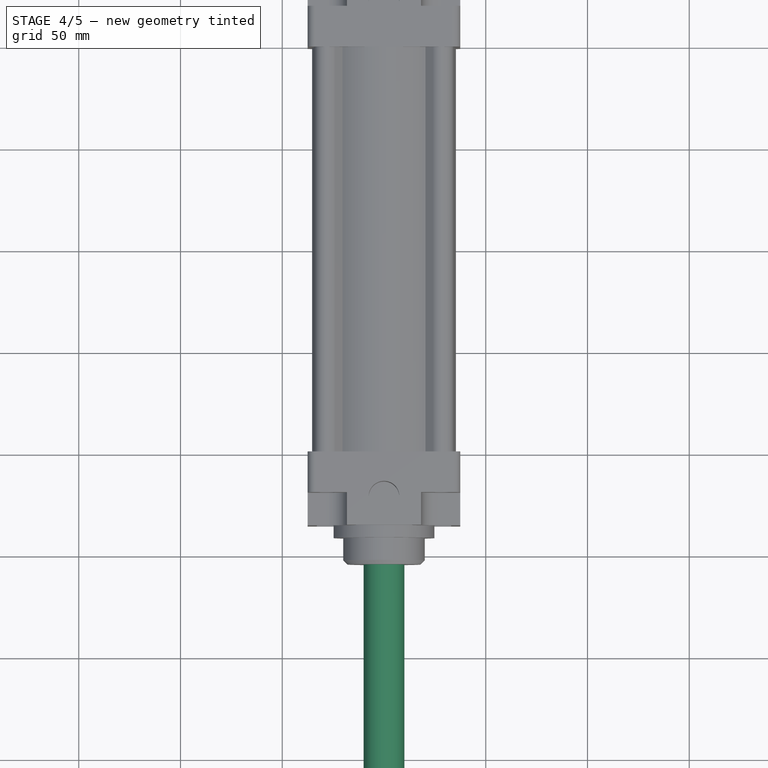
[diagram: stage 4 of 5 — top view after this stage's code; geometry added in this stage tinted green]
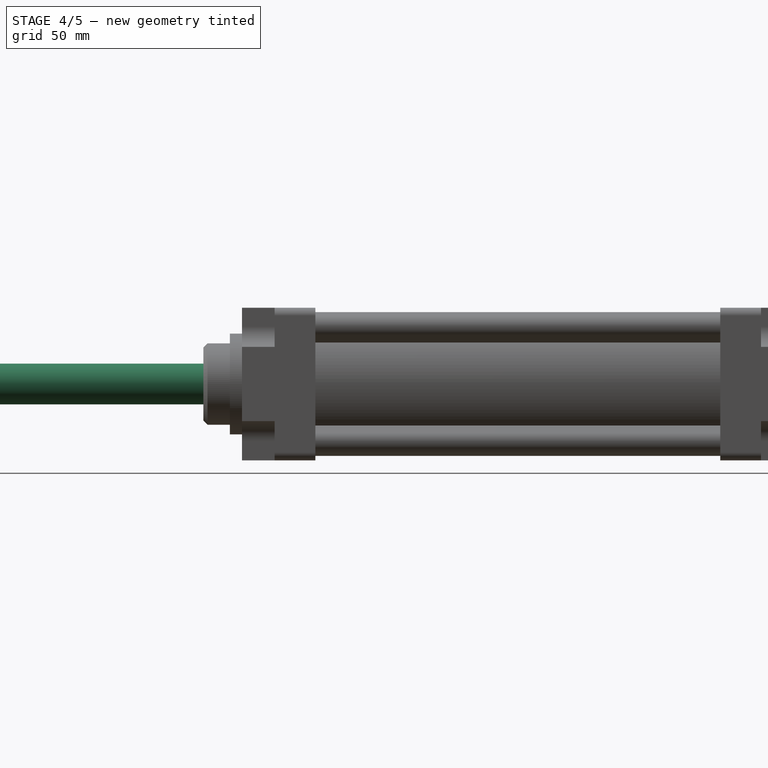
[diagram: stage 4 of 5 — right view after this stage's code; geometry added in this stage tinted green]
FEATURE [Sketcher::SketchObject] Sketch008
  MapMode = 5
  Placement = pos=(0,0,0) rot=(1,0,0;1.5708rad)
  Support = -> [XZ_Plane002]
  expr: Constraints[1] = Medidas.b / 2 * 0.95
  sketch-geometry (1):
    g0: Circle CenterX=0 CenterY=0 CenterZ=0 NormalX=0 NormalY=0 NormalZ=1 AngleXU=0 Radius=21.375
  constraints (2):
    c: Coincident(g0,g-1)
    c: Radius(g0) = 21.375
FEATURE [PartDesign::Pad] Pad007
  Length = 10
  Length2 = 100
  Placement = pos=(0,0,0) rot=(1,0,0;1.5708rad)
  Profile = -> Sketch008
  Refine = true
  Type = 0
FEATURE [Sketcher::SketchObject] Sketch009
  MapMode = 5
  Placement = pos=(0,0,0) rot=(-1,0,0;1.5708rad)
  Support = -> [Pad007]
  expr: Constraints[1] = Medidas.mmm / 2
  sketch-geometry (1):
    g0: Circle CenterX=0 CenterY=0 CenterZ=0 NormalX=0 NormalY=0 NormalZ=1 AngleXU=0 Radius=10
  constraints (2):
    c: Coincident(g0,g-1)
    c: Radius(g0) = 10
FEATURE [PartDesign::Pad] Pad008
  BaseFeature = -> Pad007
  Length = 271
  Length2 = 100
  Placement = pos=(0,0,0) rot=(1,0,0;1.5708rad)
  Profile = -> Sketch009
  Refine = true
  Reversed = true
  Type = 0
  expr: Length = Medidas.l8 + Medidas.carrera
FEATURE [Sketcher::SketchObject] Sketch015
  MapMode = 5
  Placement = pos=(0,-3.8703e-12,37.5) rot=(0,0,1;3.14159rad)
  Support = -> [Pocket]
  expr: Constraints[9] = Medidas.l8 + Medidas.carrera - 2 * Medidas.pl
  expr: Constraints[5] = Medidas.eee * 7 / 8
  expr: Constraints[4] = Medidas.eee / 2
  sketch-geometry (4):
    g0: Circle CenterX=0 CenterY=121.5 CenterZ=0 NormalX=0 NormalY=0 NormalZ=1 AngleXU=0 Radius=13.125
    g1: Circle CenterX=0 CenterY=121.5 CenterZ=0 NormalX=0 NormalY=0 NormalZ=1 AngleXU=0 Radius=7.5
    g2: Circle CenterX=0 CenterY=-121.5 CenterZ=0 NormalX=0 NormalY=0 NormalZ=1 AngleXU=0 Radius=13.125
    g3: Circle CenterX=0 CenterY=-121.5 CenterZ=0 NormalX=0 NormalY=0 NormalZ=1 AngleXU=0 Radius=7.5
  constraints (10):
    c: PointOnObject(g0,g-2)
    c: Coincident(g1,g0)
    c: PointOnObject(g2,g-2)
    c: Coincident(g3,g2)
    c: Radius(g3) = 7.5
    c: Radius(g2) = 13.125
    c: Equal(g3,g1)
    c: Equal(g0,g2)
    c: Symmetric(g2,g0,g-1)
    c: DistanceY(g2,g0) = 243
FEATURE [PartDesign::Pad] Pad011
  BaseFeature = -> Pocket
  Length = 22.5
  Length2 = 100
  Placement = pos=(0,0,0) rot=(1,0,0;1.5708rad)
  Profile = -> Sketch015
  Refine = true
  Reversed = true
  Type = 0
  expr: Length = Medidas.b / 2
FEATURE [PartDesign::Body] Body  label="Barrel+Endcap"
  Group = -> [Sketch,Pad,Sketch001,Pad001,Sketch002,Pad002,Sketch003,Pad003,Sketch004,Pad004,Mirrored,Mirrored001,Sketch013,Pad010,Fillet,Chamfer,Sketch014,Pocket,Sketch015,Pad011]
  Origin = -> Origin001
  Tip = -> Pad011
FEATURE [App::Part] Part
  Group = -> [Body,Body001,Helix,Body002,Fusion]
  Id = DA-XX-XXX-TCA
  License = CC BY 3.0
  LicenseURL = http://creativecommons.org/licenses/by/3.0/
  Origin = -> Origin
  Type = Pneumatic cylinder
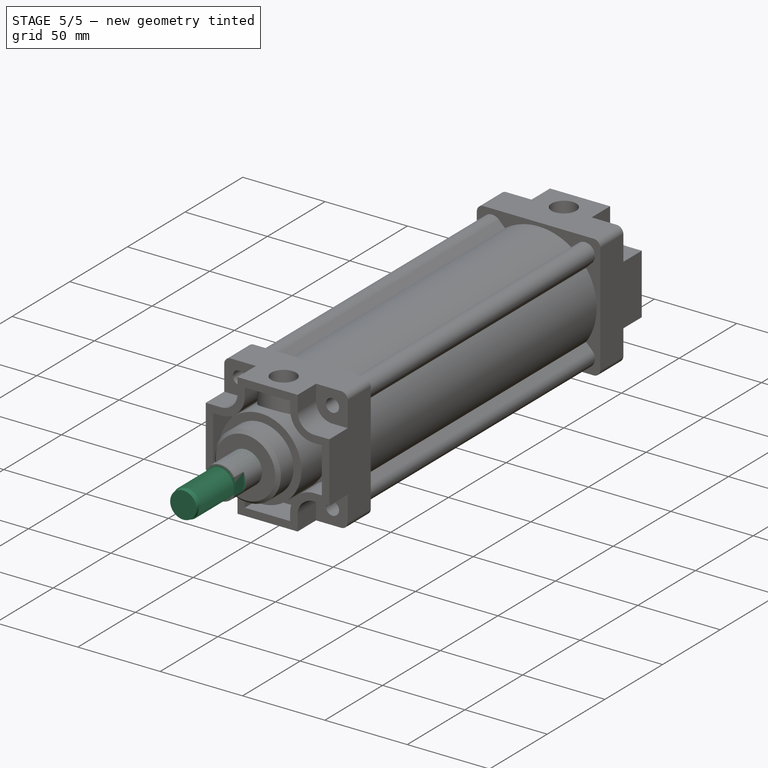
[diagram: stage 5 of 5 — iso view after this stage's code; geometry added in this stage tinted green]
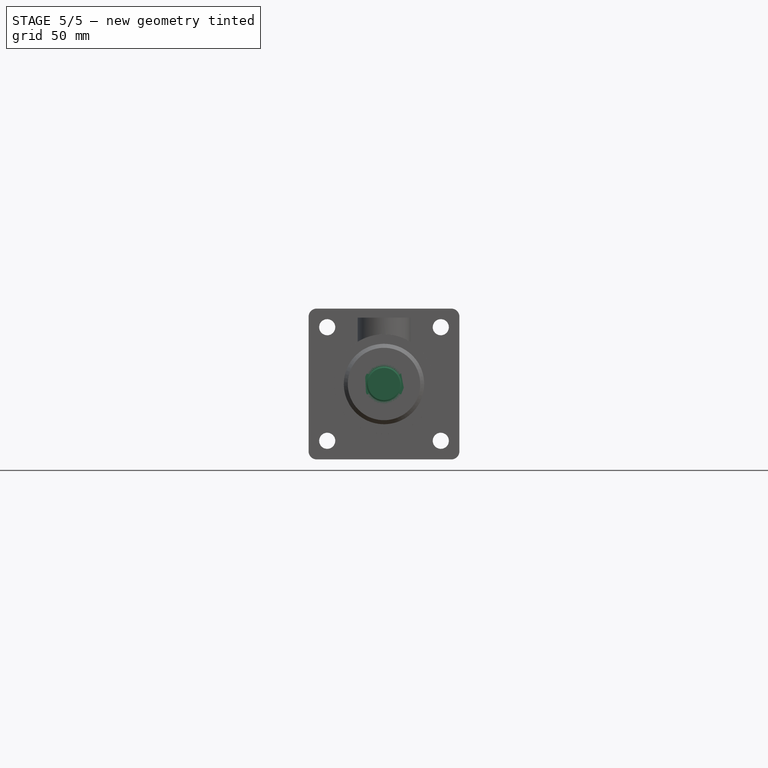
[diagram: stage 5 of 5 — front view after this stage's code; geometry added in this stage tinted green]
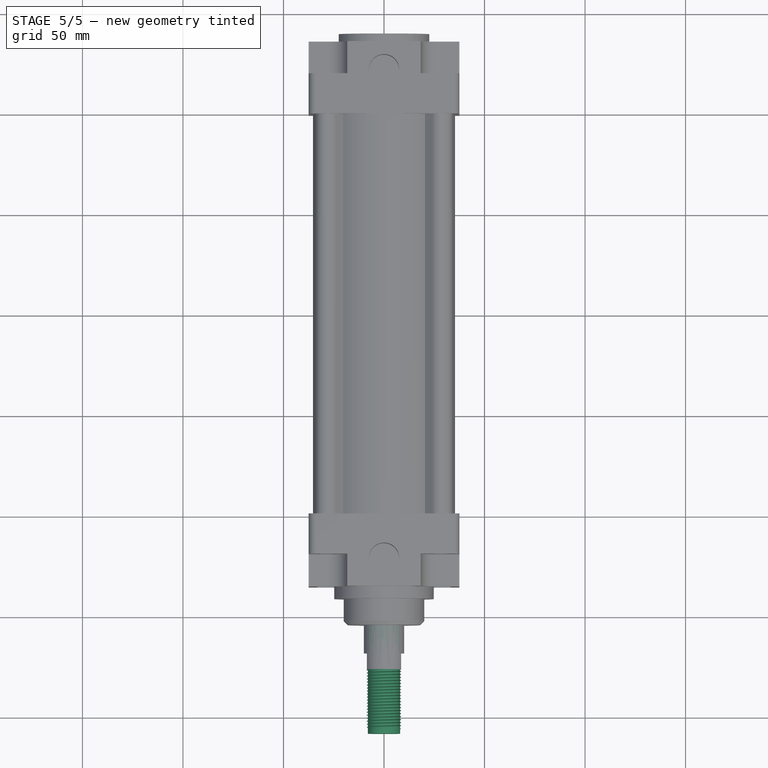
[diagram: stage 5 of 5 — top view after this stage's code; geometry added in this stage tinted green]
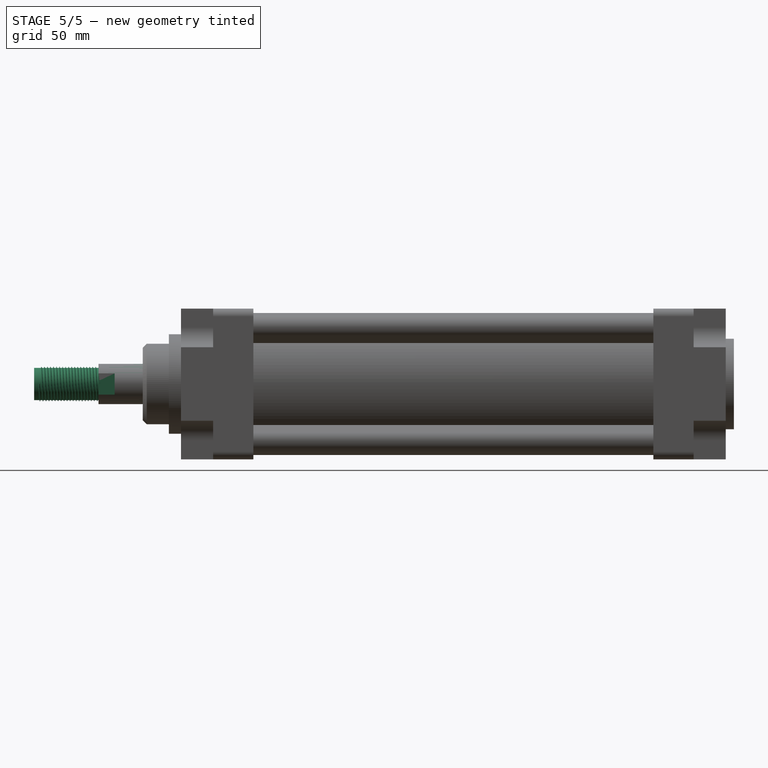
[diagram: stage 5 of 5 — right view after this stage's code; geometry added in this stage tinted green]
FEATURE [Sketcher::SketchObject] Sketch010
  MapMode = 5
  Placement = pos=(0,-271,-2.80481e-11) rot=(1,0,0;1.5708rad)
  Support = -> [Pad008]
  expr: Constraints[22] = Medidas.sw
  expr: Constraints[19] = Medidas.sw
  sketch-geometry (8):
    g0: LineSegment StartX=-25.5 StartY=8.5 StartZ=0 EndX=-8.5 EndY=8.5 EndZ=0
    g1: LineSegment StartX=-8.5 StartY=8.5 StartZ=0 EndX=-8.5 EndY=-8.5 EndZ=0
    g2: LineSegment StartX=-8.5 StartY=-8.5 StartZ=0 EndX=-25.5 EndY=-8.5 EndZ=0
    g3: LineSegment StartX=-25.5 StartY=-8.5 StartZ=0 EndX=-25.5 EndY=8.5 EndZ=0
    g4: LineSegment StartX=25.5 StartY=8.5 StartZ=0 EndX=8.5 EndY=8.5 EndZ=0
    g5: LineSegment StartX=8.5 StartY=8.5 StartZ=0 EndX=8.5 EndY=-8.5 EndZ=0
    g6: LineSegment StartX=8.5 StartY=-8.5 StartZ=0 EndX=25.5 EndY=-8.5 EndZ=0
    g7: LineSegment StartX=25.5 StartY=-8.5 StartZ=0 EndX=25.5 EndY=8.5 EndZ=0
  constraints (23):
    c: Coincident(g0,g1)
    c: Coincident(g1,g2)
    c: Coincident(g2,g3)
    c: Coincident(g3,g0)
    c: Horizontal(g0)
    c: Horizontal(g2)
    c: Vertical(g1)
    c: Vertical(g3)
    c: Coincident(g4,g5)
    c: Coincident(g5,g6)
    c: Coincident(g6,g7)
    c: Coincident(g7,g4)
    c: Horizontal(g4)
    c: Horizontal(g6)
    c: Vertical(g5)
    c: Vertical(g7)
    c: Symmetric(g0,g4,g-2)
    c: Equal(g5,g1)
    c: Equal(g6,g2)
    c: DistanceX(g0,g4) = 17
    c: Symmetric(g0,g2,g-1)
    c: Equal(g0,g3)
    c: DistanceX(g0,g0) = 17
FEATURE [PartDesign::Pocket] Pocket001
  BaseFeature = -> Pad008
  Length = 8
  Length2 = 100
  Placement = pos=(0,0,0) rot=(1,0,0;1.5708rad)
  Profile = -> Sketch010
  Refine = true
  Type = 0
  expr: Length = Medidas.kw
FEATURE [Sketcher::SketchObject] Sketch011
  MapMode = 5
  Placement = pos=(0,-271,-2.80481e-11) rot=(1,0,0;1.5708rad)
  Support = -> [Pocket001]
  expr: Constraints[1] = Medidas.kk / 2
  sketch-geometry (1):
    g0: Circle CenterX=0 CenterY=0 CenterZ=0 NormalX=0 NormalY=0 NormalZ=1 AngleXU=0 Radius=8
  constraints (2):
    c: Coincident(g0,g-1)
    c: Radius(g0) = 8
FEATURE [Part::Helix] Helix  label="Thread Helice"
  Angle = 0
  AttacherType = Attacher::AttachEngine3D
  Height = 32
  LocalCoord = 0
  Pitch = 1.5
  Placement = pos=(0,0,0) rot=(-1,0,0;1.5708rad)
  Radius = 8
  Style = 1
  expr: Radius = Medidas.kk / 2
  expr: Height = Medidas.am
  expr: Pitch = Medidas.kkp
FEATURE [App::MeasureDistance] Distance  label="WH"
  Distance = 36
  P1 = (0,-171.5,0)
  P2 = (0,-135.5,0)
  expr: P2.y = -(Medidas.l8 + Medidas.carrera) / 2
FEATURE [Sketcher::SketchObject] Sketch012
  MapMode = 5
  Support = -> [XY_Plane003]
  expr: Constraints[6] = Medidas.kk / 2 * 0.96
  sketch-geometry (3):
    g0: LineSegment StartX=7.68 StartY=0.4 StartZ=0 EndX=7.68 EndY=-0.4 EndZ=0
    g1: LineSegment StartX=7.68 StartY=-0.4 StartZ=0 EndX=8.68 EndY=0 EndZ=0
    g2: LineSegment StartX=8.68 StartY=0 StartZ=0 EndX=7.68 EndY=0.4 EndZ=0
  constraints (9):
    c: Vertical(g0)
    c: Coincident(g0,g1)
    c: PointOnObject(g1,g-1)
    c: Coincident(g1,g2)
    c: Coincident(g2,g0)
    c: Symmetric(g0,g0,g-1)
    c: DistanceX(g-1,g0) = 7.68
    c: DistanceX(g0,g1) = 1
    c: DistanceY(g0,g0) = 0.8
FEATURE [PartDesign::ShapeBinder] ReferenceHelix001  label="ReferenceHelix"
  Placement = pos=(0,0,0) rot=(-1,0,0;1.5708rad)
  Support = -> [Helix]
  TraceSupport = false
FEATURE [PartDesign::AdditivePipe] AdditivePipe
  AuxilleryCurvelinear = true
  AuxillerySpineTangent = false
  Binormal = (0,0,0)
  Mode = 2
  Profile = -> Sketch012
  Refine = true
  Spine = -> ReferenceHelix001 [Edge1,Edge2,Edge3,Edge4,Edge5,Edge6,Edge7,Edge8,Edge9,Edge10,Edge11,Edge12,Edge13,Edge14,Edge15,Edge16,Edge17,Edge18,Edge19,Edge20]
  SpineTangent = false
  Transformation = 0
  Transition = 0
FEATURE [PartDesign::Body] Body002  label="Thread"
  Group = -> [Sketch012,AdditivePipe,ReferenceHelix001]
  Origin = -> Origin003
  Placement = pos=(0,-300.5,0) rot=(0,0,1;0rad)
  Tip = -> AdditivePipe
  expr: Placement.Base.y = -Medidas.l8 - Medidas.carrera - Medidas.l2 - 3
FEATURE [PartDesign::Pad] Pad009
  BaseFeature = -> Pocket001
  Length = 32
  Length2 = 100
  Placement = pos=(0,0,0) rot=(1,0,0;1.5708rad)
  Profile = -> Sketch011
  Refine = true
  Type = 0
  expr: Length = Medidas.am
FEATURE [PartDesign::Body] Body001  label="Piston+rod"
  Group = -> [Sketch008,Pad007,Sketch009,Pad008,Sketch010,Pocket001,Sketch011,Pad009]
  Origin = -> Origin002
  Tip = -> Pad009
FEATURE [Part::Fuse] Fusion  label="Piston Rod"
  Base = -> Body001
  Placement = pos=(0,94.5,0) rot=(0,0,1;0rad)
  Refine = true
  Tool = -> Body002
  expr: Placement.Base.y = (Medidas.l8 + Medidas.carrera) / 2 - Medidas.gg + -Medidas.delta
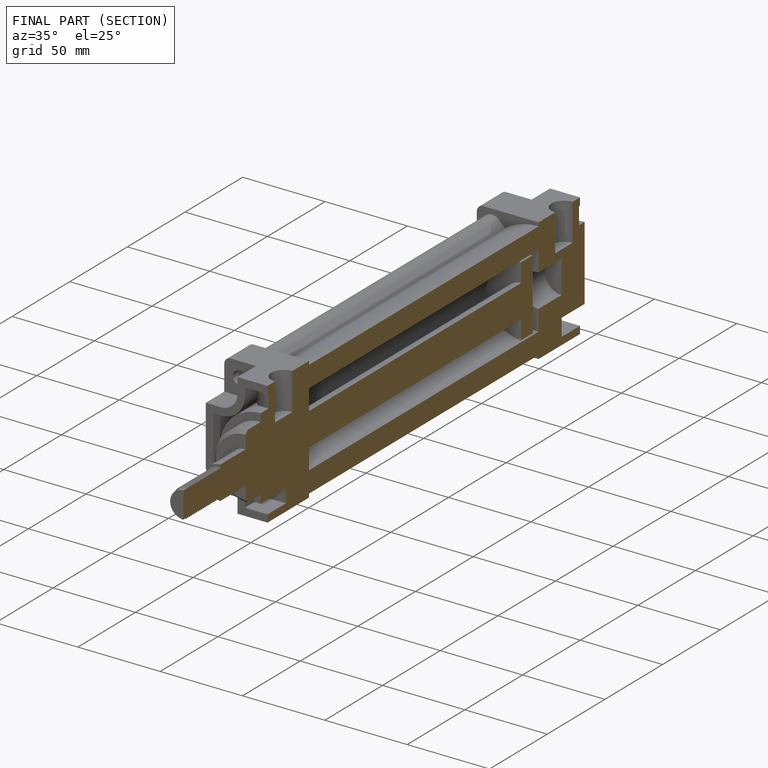
[diagram: finished part — half-section view (interior)]
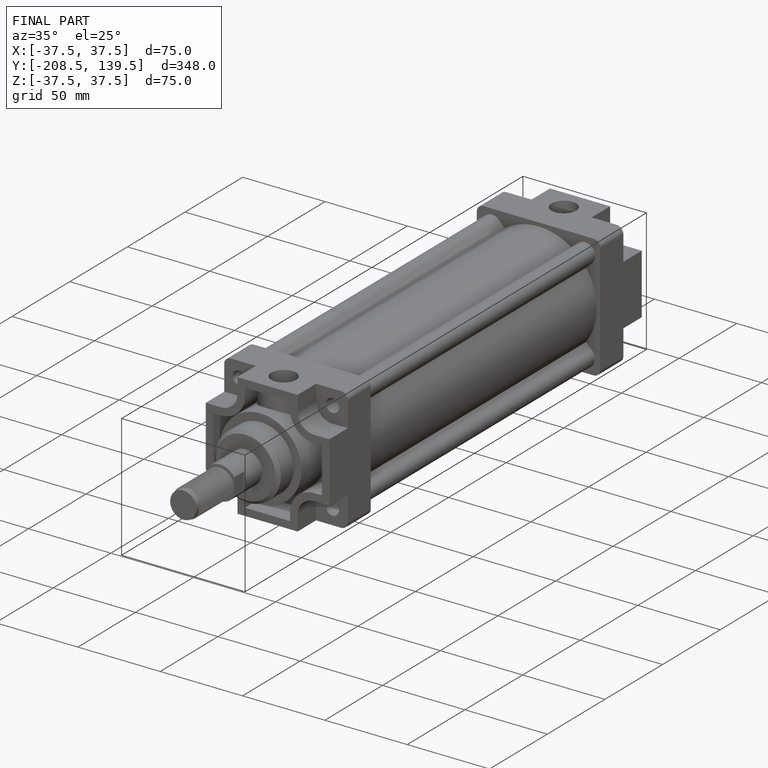
[diagram: finished part — iso view with bounding-box wireframe]
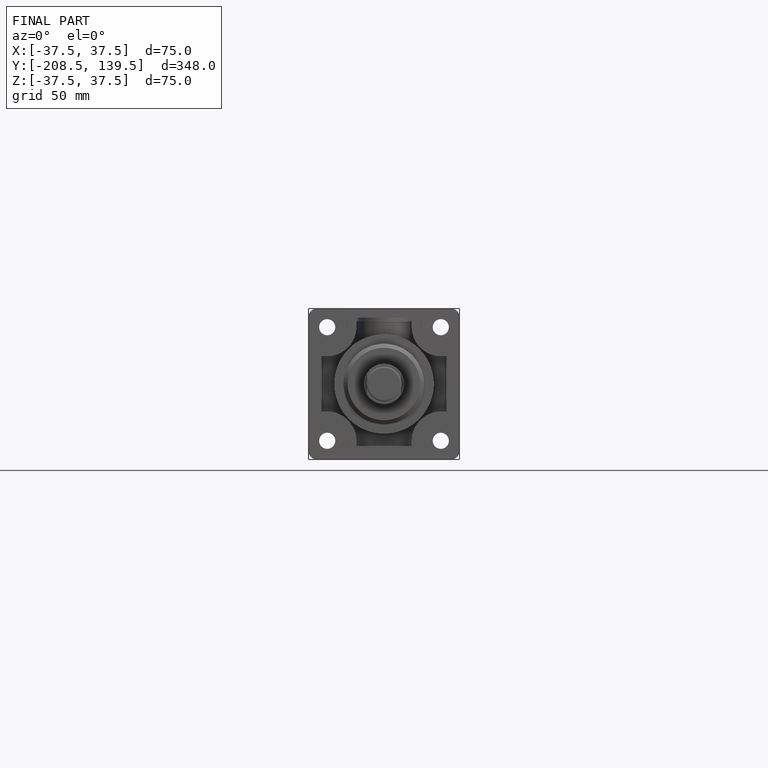
[diagram: finished part — front view with bounding-box wireframe]
